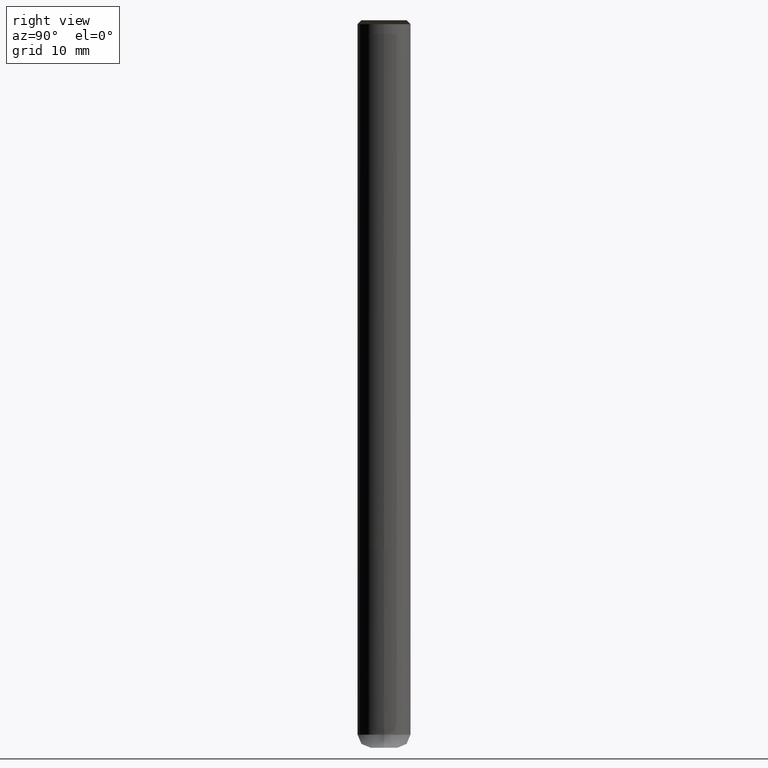
[diagram: clean part render]
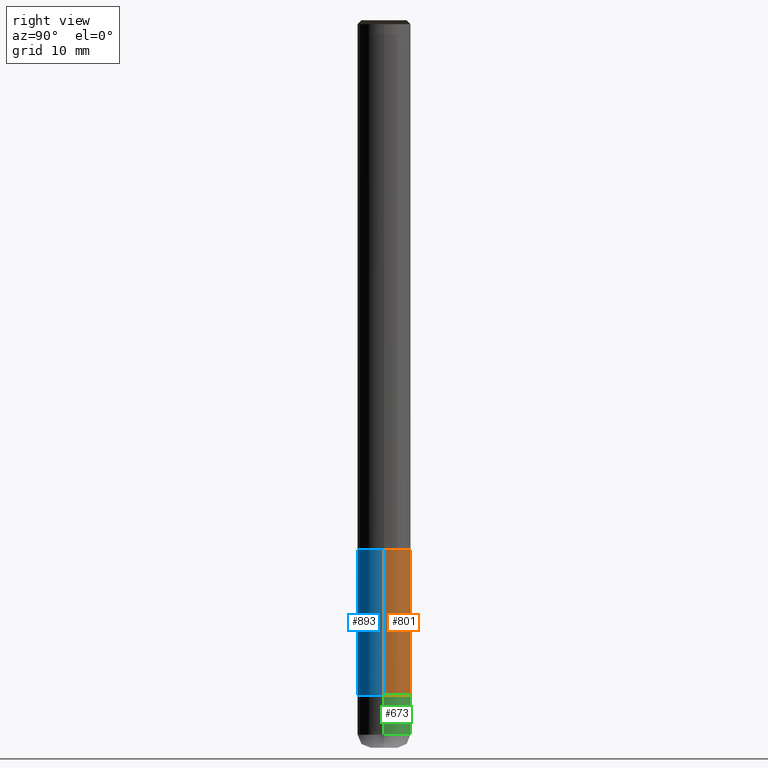
[diagram: same view with three faces highlighted in distinct colors, each labeled with its STEP entity id]
A machine part, right view with three faces highlighted in distinct colors.
Their STEP definitions:

[orange] entity #801 — the highlighted face is a freeform B-spline surface patch.
#562=CARTESIAN_POINT('',(4.0,0.0,-22.0));
#563=CARTESIAN_POINT('',(4.0,4.0,-22.0));
#564=CARTESIAN_POINT('',(0.0,4.0,-22.0));
#565=CARTESIAN_POINT('',(-4.0,4.0,-22.0));
#566=CARTESIAN_POINT('',(-4.0,0.0,-22.0));
#586=CARTESIAN_POINT('',(4.0,0.0,0.0));
#587=CARTESIAN_POINT('',(4.0,4.0,0.0));
#588=CARTESIAN_POINT('',(0.0,4.0,0.0));
#589=CARTESIAN_POINT('',(-4.0,4.0,0.0));
#590=CARTESIAN_POINT('',(-4.0,0.0,0.0));
#782=(
BOUNDED_SURFACE()
B_SPLINE_SURFACE(1,2,(
(#562,#563,#564,#565,#566),
(#586,#587,#588,#589,#590)
), .UNSPECIFIED.,.F.,.F.,.F.)
B_SPLINE_SURFACE_WITH_KNOTS((2,2),(3,2,3),(
0.0,1.0),(
0.0,0.5,1.0), .UNSPECIFIED.)
GEOMETRIC_REPRESENTATION_ITEM()
RATIONAL_B_SPLINE_SURFACE(((1.0,0.707106781187,1.0,0.707106781187,1.0),
(1.0,0.707106781187,1.0,0.707106781187,1.0)
))
REPRESENTATION_ITEM('')
SURFACE()
);
#783=(
BOUNDED_CURVE()
B_SPLINE_CURVE(2,(#586,#587,#588,#589,#590),.UNSPECIFIED.,.F.,.F.)
B_SPLINE_CURVE_WITH_KNOTS((3,2,3),
(0.0,0.5,1.0),.UNSPECIFIED.)
CURVE()
GEOMETRIC_REPRESENTATION_ITEM()
RATIONAL_B_SPLINE_CURVE((1.0,0.707106781187,1.0,0.707106781187,1.0))
REPRESENTATION_ITEM('')
);
#784=(
BOUNDED_CURVE()
B_SPLINE_CURVE(1,(#590,#566),.UNSPECIFIED.,.F.,.F.)
B_SPLINE_CURVE_WITH_KNOTS((2,2),
(0.0,1.0),.UNSPECIFIED.)
CURVE()
GEOMETRIC_REPRESENTATION_ITEM()
RATIONAL_B_SPLINE_CURVE((1.0,1.0))
REPRESENTATION_ITEM('')
);
#785=(
BOUNDED_CURVE()
B_SPLINE_CURVE(2,(#566,#565,#564,#563,#562),.UNSPECIFIED.,.F.,.F.)
B_SPLINE_CURVE_WITH_KNOTS((3,2,3),
(0.0,0.5,1.0),.UNSPECIFIED.)
CURVE()
GEOMETRIC_REPRESENTATION_ITEM()
RATIONAL_B_SPLINE_CURVE((1.0,0.707106781187,1.0,0.707106781187,1.0))
REPRESENTATION_ITEM('')
);
#786=(
BOUNDED_CURVE()
B_SPLINE_CURVE(1,(#562,#586),.UNSPECIFIED.,.F.,.F.)
B_SPLINE_CURVE_WITH_KNOTS((2,2),
(0.0,1.0),.UNSPECIFIED.)
CURVE()
GEOMETRIC_REPRESENTATION_ITEM()
RATIONAL_B_SPLINE_CURVE((1.0,1.0))
REPRESENTATION_ITEM('')
);
#787=VERTEX_POINT('',#562);
#788=VERTEX_POINT('',#566);
#789=VERTEX_POINT('',#586);
#790=VERTEX_POINT('',#590);
#791=EDGE_CURVE('',#789,#790,#783,.T.);
#792=EDGE_CURVE('',#790,#788,#784,.T.);
#793=EDGE_CURVE('',#788,#787,#785,.T.);
#794=EDGE_CURVE('',#787,#789,#786,.T.);
#795=ORIENTED_EDGE('',*,*,#791,.T.);
#796=ORIENTED_EDGE('',*,*,#792,.T.);
#797=ORIENTED_EDGE('',*,*,#793,.T.);
#798=ORIENTED_EDGE('',*,*,#794,.T.);
#799=EDGE_LOOP('',(#795,#796,#797,#798));
#800=FACE_OUTER_BOUND('',#799,.T.);
#801=ADVANCED_FACE('',(#800),#782,.T.);

[blue] entity #893 — the highlighted face is a freeform B-spline surface patch.
#562=CARTESIAN_POINT('',(4.0,0.0,-22.0));
#566=CARTESIAN_POINT('',(-4.0,0.0,-22.0));
#583=CARTESIAN_POINT('',(-4.0,-4.0,-22.0));
#584=CARTESIAN_POINT('',(0.0,-4.0,-22.0));
#585=CARTESIAN_POINT('',(4.0,-4.0,-22.0));
#586=CARTESIAN_POINT('',(4.0,0.0,0.0));
#590=CARTESIAN_POINT('',(-4.0,0.0,0.0));
#602=CARTESIAN_POINT('',(-4.0,-4.0,0.0));
#603=CARTESIAN_POINT('',(0.0,-4.0,0.0));
#604=CARTESIAN_POINT('',(4.0,-4.0,0.0));
#874=(
BOUNDED_SURFACE()
B_SPLINE_SURFACE(1,2,(
(#566,#583,#584,#585,#562),
(#590,#602,#603,#604,#586)
), .UNSPECIFIED.,.F.,.F.,.F.)
B_SPLINE_SURFACE_WITH_KNOTS((2,2),(3,2,3),(
0.0,1.0),(
0.0,0.5,1.0), .UNSPECIFIED.)
GEOMETRIC_REPRESENTATION_ITEM()
RATIONAL_B_SPLINE_SURFACE(((1.0,0.707106781187,1.0,0.707106781187,1.0),
(1.0,0.707106781187,1.0,0.707106781187,1.0)
))
REPRESENTATION_ITEM('')
SURFACE()
);
#875=(
BOUNDED_CURVE()
B_SPLINE_CURVE(1,(#590,#566),.UNSPECIFIED.,.F.,.F.)
B_SPLINE_CURVE_WITH_KNOTS((2,2),
(0.0,1.0),.UNSPECIFIED.)
CURVE()
GEOMETRIC_REPRESENTATION_ITEM()
RATIONAL_B_SPLINE_CURVE((1.0,1.0))
REPRESENTATION_ITEM('')
);
#876=(
BOUNDED_CURVE()
B_SPLINE_CURVE(2,(#566,#583,#584,#585,#562),.UNSPECIFIED.,.F.,.F.)
B_SPLINE_CURVE_WITH_KNOTS((3,2,3),
(0.0,0.5,1.0),.UNSPECIFIED.)
CURVE()
GEOMETRIC_REPRESENTATION_ITEM()
RATIONAL_B_SPLINE_CURVE((1.0,0.707106781187,1.0,0.707106781187,1.0))
REPRESENTATION_ITEM('')
);
#877=(
BOUNDED_CURVE()
B_SPLINE_CURVE(1,(#562,#586),.UNSPECIFIED.,.F.,.F.)
B_SPLINE_CURVE_WITH_KNOTS((2,2),
(0.0,1.0),.UNSPECIFIED.)
CURVE()
GEOMETRIC_REPRESENTATION_ITEM()
RATIONAL_B_SPLINE_CURVE((1.0,1.0))
REPRESENTATION_ITEM('')
);
#878=(
BOUNDED_CURVE()
B_SPLINE_CURVE(2,(#586,#604,#603,#602,#590),.UNSPECIFIED.,.F.,.F.)
B_SPLINE_CURVE_WITH_KNOTS((3,2,3),
(0.0,0.5,1.0),.UNSPECIFIED.)
CURVE()
GEOMETRIC_REPRESENTATION_ITEM()
RATIONAL_B_SPLINE_CURVE((1.0,0.707106781187,1.0,0.707106781187,1.0))
REPRESENTATION_ITEM('')
);
#879=VERTEX_POINT('',#562);
#880=VERTEX_POINT('',#566);
#881=VERTEX_POINT('',#586);
#882=VERTEX_POINT('',#590);
#883=EDGE_CURVE('',#882,#880,#875,.T.);
#884=EDGE_CURVE('',#880,#879,#876,.T.);
#885=EDGE_CURVE('',#879,#881,#877,.T.);
#886=EDGE_CURVE('',#881,#882,#878,.T.);
#887=ORIENTED_EDGE('',*,*,#883,.T.);
#888=ORIENTED_EDGE('',*,*,#884,.T.);
#889=ORIENTED_EDGE('',*,*,#885,.T.);
#890=ORIENTED_EDGE('',*,*,#886,.T.);
#891=EDGE_LOOP('',(#887,#888,#889,#890));
#892=FACE_OUTER_BOUND('',#891,.T.);
#893=ADVANCED_FACE('',(#892),#874,.T.);

[green] entity #673 — the highlighted face is a freeform B-spline surface patch.
#557=CARTESIAN_POINT('',(4.0,0.0,-28.0));
#558=CARTESIAN_POINT('',(4.0,4.0,-28.0));
#559=CARTESIAN_POINT('',(0.0,4.0,-28.0));
#560=CARTESIAN_POINT('',(-4.0,4.0,-28.0));
#561=CARTESIAN_POINT('',(-4.0,0.0,-28.0));
#562=CARTESIAN_POINT('',(4.0,0.0,-22.0));
#563=CARTESIAN_POINT('',(4.0,4.0,-22.0));
#564=CARTESIAN_POINT('',(0.0,4.0,-22.0));
#565=CARTESIAN_POINT('',(-4.0,4.0,-22.0));
#566=CARTESIAN_POINT('',(-4.0,0.0,-22.0));
#654=(
BOUNDED_SURFACE()
B_SPLINE_SURFACE(1,2,(
(#557,#558,#559,#560,#561),
(#562,#563,#564,#565,#566)
), .UNSPECIFIED.,.F.,.F.,.F.)
B_SPLINE_SURFACE_WITH_KNOTS((2,2),(3,2,3),(
0.0,1.0),(
0.0,0.5,1.0), .UNSPECIFIED.)
GEOMETRIC_REPRESENTATION_ITEM()
RATIONAL_B_SPLINE_SURFACE(((1.0,0.707106781187,1.0,0.707106781187,1.0),
(1.0,0.707106781187,1.0,0.707106781187,1.0)
))
REPRESENTATION_ITEM('')
SURFACE()
);
#655=(
BOUNDED_CURVE()
B_SPLINE_CURVE(2,(#562,#563,#564,#565,#566),.UNSPECIFIED.,.F.,.F.)
B_SPLINE_CURVE_WITH_KNOTS((3,2,3),
(0.0,0.5,1.0),.UNSPECIFIED.)
CURVE()
GEOMETRIC_REPRESENTATION_ITEM()
RATIONAL_B_SPLINE_CURVE((1.0,0.707106781187,1.0,0.707106781187,1.0))
REPRESENTATION_ITEM('')
);
#656=(
BOUNDED_CURVE()
B_SPLINE_CURVE(1,(#566,#561),.UNSPECIFIED.,.F.,.F.)
B_SPLINE_CURVE_WITH_KNOTS((2,2),
(0.0,1.0),.UNSPECIFIED.)
CURVE()
GEOMETRIC_REPRESENTATION_ITEM()
RATIONAL_B_SPLINE_CURVE((1.0,1.0))
REPRESENTATION_ITEM('')
);
#657=(
BOUNDED_CURVE()
B_SPLINE_CURVE(2,(#561,#560,#559,#558,#557),.UNSPECIFIED.,.F.,.F.)
B_SPLINE_CURVE_WITH_KNOTS((3,2,3),
(0.0,0.5,1.0),.UNSPECIFIED.)
CURVE()
GEOMETRIC_REPRESENTATION_ITEM()
RATIONAL_B_SPLINE_CURVE((1.0,0.707106781187,1.0,0.707106781187,1.0))
REPRESENTATION_ITEM('')
);
#658=(
BOUNDED_CURVE()
B_SPLINE_CURVE(1,(#557,#562),.UNSPECIFIED.,.F.,.F.)
B_SPLINE_CURVE_WITH_KNOTS((2,2),
(0.0,1.0),.UNSPECIFIED.)
CURVE()
GEOMETRIC_REPRESENTATION_ITEM()
RATIONAL_B_SPLINE_CURVE((1.0,1.0))
REPRESENTATION_ITEM('')
);
#659=VERTEX_POINT('',#557);
#660=VERTEX_POINT('',#561);
#661=VERTEX_POINT('',#562);
#662=VERTEX_POINT('',#566);
#663=EDGE_CURVE('',#661,#662,#655,.T.);
#664=EDGE_CURVE('',#662,#660,#656,.T.);
#665=EDGE_CURVE('',#660,#659,#657,.T.);
#666=EDGE_CURVE('',#659,#661,#658,.T.);
#667=ORIENTED_EDGE('',*,*,#663,.T.);
#668=ORIENTED_EDGE('',*,*,#664,.T.);
#669=ORIENTED_EDGE('',*,*,#665,.T.);
#670=ORIENTED_EDGE('',*,*,#666,.T.);
#671=EDGE_LOOP('',(#667,#668,#669,#670));
#672=FACE_OUTER_BOUND('',#671,.T.);
#673=ADVANCED_FACE('',(#672),#654,.T.);